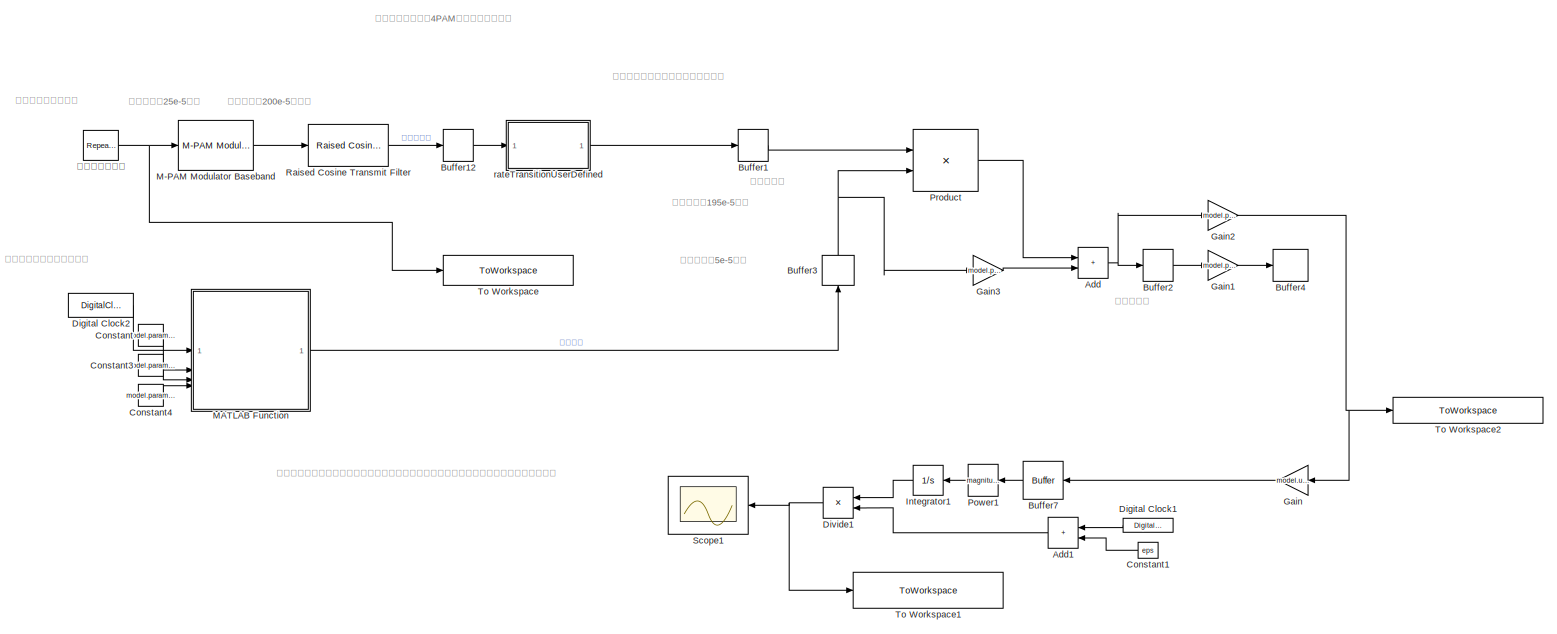
[diagram: root canvas - part 1/1, most of the canvas]
MODEL slx_f342829eb82f
KIND model
CONFIG AbsTol = auto
CONFIG EnableMultiTasking = off
CONFIG FixedStep = auto
CONFIG InitFcn = Parameter_Initialize_3
CONFIG MaxStep = auto
CONFIG MinStep = auto
CONFIG RelTol = 1e-3
CONFIG SampleTimeConstraint = Unconstrained
CONFIG SolverName = VariableStepAuto
CONFIG StartTime = 0.0
CONFIG StopTime = 0.01
BLOCK [Sum] Add
  IconShape = rectangular
BLOCK [Sum] Add1
  IconShape = rectangular
  NameLocation = top
BLOCK [Buffer] Buffer1
  N = model.parameter.Buffer1.Output_buffer_size
  OutputFrames = off
BLOCK [Buffer] Buffer12
  N = model.parameter.Buffer12.Output_buffer_size
  OutputFrames = off
BLOCK [Buffer] Buffer2
  Commented = on
  N = model.parameter.Buffer2.Output_buffer_size
  OutputFrames = off
BLOCK [Buffer] Buffer3
  N = model.parameter.Buffer3.Output_buffer_size
  NameLocation = right
  OutputFrames = off
BLOCK [Buffer] Buffer4
  Commented = on
  N = model.parameter.Buffer4.Output_buffer_size
  OutputFrames = off
BLOCK [Buffer] Buffer7
  N = 1
  NameLocation = top
  OutputFrames = off
BLOCK [Constant] Constant
  Value = model.parameter.func1.f_chirp_min
BLOCK [Constant] Constant1
  NameLocation = top
  SampleTime = model.parameter.channel_estimate_fs
  Value = eps
BLOCK [Constant] Constant3
  Value = model.parameter.func1.f_chirp_max
BLOCK [Constant] Constant4
  Value = model.parameter.func1.T_chirp
BLOCK [DigitalClock] Digital Clock1
  NameLocation = top
  SampleTime = model.parameter.channel_estimate_fs
BLOCK [DigitalClock] Digital Clock2
  SampleTime = model.parameter.Digital_Clock2.CarrierTs
BLOCK [Product] Divide1
  Inputs = */
  NameLocation = top
BLOCK [Gain] Gain
  Gain = model.user_defined.TR.Sig_power_controller_coeffience
  NameLocation = top
BLOCK [Gain] Gain1
  Commented = on
  Gain = model.parameter.gain1.value
BLOCK [Gain] Gain2
  Gain = model.parameter.gain1.value
BLOCK [Gain] Gain3
  Gain = model.parameter.gain3.value
BLOCK [Integrator] Integrator1
  NameLocation = top
BLOCK [Reference] M-PAM Modulator Baseband  REF=commdigbbndam3/M-PAM
Modulator
Baseband
  SourceBlock = commdigbbndam3/M-PAM\nModulator\nBaseband
  SourceType = M-PAM Modulator Baseband
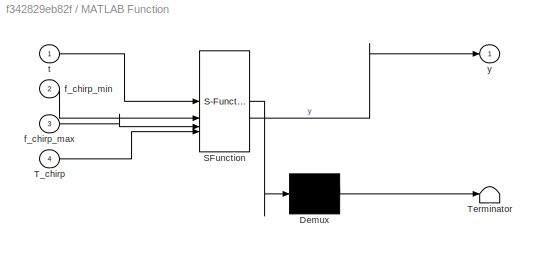
BLOCK [SubSystem] MATLAB Function
  ErrorFcn = Stateflow.Translate.translate
  InitFcn = f_chirp_min=4.8e6;\nf_chirp_max=5.2e6;\nT_chirp=4e-4;
  LibrarySourceBlock = simulink/User-Defined\nFunctions/MATLAB Function
  PermitHierarchicalResolution = ExplicitOnly
  SFBlockType = MATLAB Function
  TreatAsAtomicUnit = on
BLOCK [Demux] MATLAB Function/ Demux 
  Outputs = 1
BLOCK [S-Function] MATLAB Function/ SFunction 
  EnableBusSupport = on
  FunctionName = sf_sfun
  PortCounts = [4 2]
  SFcnIsStateOwnerBlock = off
  SFunctionDeploymentMode = off
  Tag = Stateflow S-Function 1
BLOCK [Terminator] MATLAB Function/ Terminator 
BLOCK [Inport] MATLAB Function/T_chirp
  Port = 4
BLOCK [Inport] MATLAB Function/f_chirp_max
  Port = 3
BLOCK [Inport] MATLAB Function/f_chirp_min
  Port = 2
BLOCK [Inport] MATLAB Function/t
BLOCK [Outport] MATLAB Function/y
BLOCK [Math] Power1
  NameLocation = top
  Operator = magnitude^2
BLOCK [Product] Product
BLOCK [Reference] Raised Cosine Transmit Filter  REF=commfilt2/Raised Cosine
Transmit Filter
  SourceBlock = commfilt2/Raised Cosine\nTransmit Filter
  SourceType = Raised Cosine Transmit Filter
BLOCK [Scope] Scope1
  Floating = off
  NameLocation = top
  NumInputPorts = 1
  ScopeSpecificationString = Simulink.scopes.TimeScopeBlockCfg('CurrentConfiguration', extmgr.ConfigurationSet(extmgr.Configuration('Core','General UI',true),extmgr.Configuration('Core','Source UI',true),extmgr.Configuration('Sources','WiredSimulink',true,'DataLoggingVariableName','ScopeData1'),extmgr.Configuration('Visuals','Time Domain',true,'SerializedDisplays',{struct('MinYLimReal','-0.01419','MaxYLimReal','0.12775','YLab...<+1388ch>
BLOCK [ToWorkspace] To Workspace
  FixptAsFi = on
  MaxDataPoints = inf
  SampleTime = -1
  SaveFormat = Timeseries
  VariableName = sending_coding
BLOCK [ToWorkspace] To Workspace1
  FixptAsFi = on
  MaxDataPoints = inf
  SampleTime = -1
  SaveFormat = Timeseries
  VariableName = power_estimation_result
BLOCK [ToWorkspace] To Workspace2
  FixptAsFi = on
  MaxDataPoints = inf
  SampleTime = -1
  SaveFormat = Timeseries
  VariableName = sending_modulation_wave
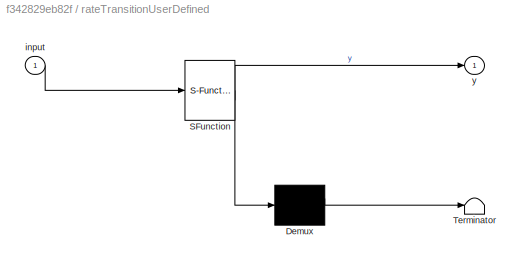
BLOCK [SubSystem] rateTransitionUserDefined
  ErrorFcn = Stateflow.Translate.translate
  LibrarySourceBlock = simulink/User-Defined\nFunctions/MATLAB Function
  PermitHierarchicalResolution = ExplicitOnly
  SFBlockType = MATLAB Function
  TreatAsAtomicUnit = on
BLOCK [Demux] rateTransitionUserDefined/ Demux 
  Outputs = 1
BLOCK [S-Function] rateTransitionUserDefined/ SFunction 
  EnableBusSupport = on
  FunctionName = sf_sfun
  PortCounts = [1 2]
  SFcnIsStateOwnerBlock = off
  SFunctionDeploymentMode = off
  Tag = Stateflow S-Function 5
BLOCK [Terminator] rateTransitionUserDefined/ Terminator 
BLOCK [Inport] rateTransitionUserDefined/input
BLOCK [Outport] rateTransitionUserDefined/y
BLOCK [Reference] 帧信号编码码元  REF=simulink/Sources/Repeating
Sequence
Stair
  SourceBlock = simulink/Sources/Repeating\nSequence\nStair
  SourceType = Repeating Sequence Stair
ANNOTATION (root): 帧信号仿真（基于4PAM的线性调频链路）
ANNOTATION (root): 新发现：对于堆栈由大变小，当大堆栈的大小不是小堆栈大小的整数倍时，同样会产生时延
ANNOTATION (root): 射频调制模拟以及部分本地载波相加
ANNOTATION (root): 帧信号基带调制模块
ANNOTATION (root): 帧信号对应的本地载波生成
ANNOTATION (root): 此处产生了195e-5延时
ANNOTATION (root): 此处产生了200e-5的延时
ANNOTATION (root): 此处产生了25e-5延时
ANNOTATION (root): 此处产生了5e-5延时
ANNOTATION (root): 此处无延时
LINE Add1:1 -> Divide1:2
NET Add:1 -> Buffer2:1, Gain2:1
LINE Buffer12:1 -> rateTransitionUserDefined:1
LINE Buffer1:1 -> Product:1
LINE Buffer2:1 -> Gain1:1
NET Buffer3:1 -> Gain3:1, Product:2
LINE Buffer7:1 -> Power1:1
LINE Constant1:1 -> Add1:2
LINE Constant3:1 -> MATLAB Function:3
LINE Constant4:1 -> MATLAB Function:4
LINE Constant:1 -> MATLAB Function:2
LINE Digital Clock1:1 -> Add1:1
LINE Digital Clock2:1 -> MATLAB Function:1
NET Divide1:1 -> Scope1:1, To Workspace1:1
LINE Gain1:1 -> Buffer4:1
NET Gain2:1 -> Gain:1, To Workspace2:1
LINE Gain3:1 -> Add:2
LINE Gain:1 -> Buffer7:1
LINE Integrator1:1 -> Divide1:1
LINE M-PAM Modulator Baseband:1 -> Raised Cosine Transmit Filter:1
LINE MATLAB Function:1 -> Buffer3:1
LINE Power1:1 -> Integrator1:1
LINE Product:1 -> Add:1
LINE Raised Cosine Transmit Filter:1 -> Buffer12:1
LINE rateTransitionUserDefined:1 -> Buffer1:1
NET 帧信号编码码元:1 -> M-PAM Modulator Baseband:1, To Workspace:1
note: NET lines group one-source signal fan-out (src -> all destinations, sorted); 1:1 wires keep LINE
CHART MATLAB Function states=1 transitions=1
  STATE_LABEL 'eML_blk_kernel()'
  STATE_LABEL 'SCRIPT:\n% function y = carrierGenerator(t)\n%     fc = 5e6;\n%     y = exp(1i*2*pi*fc*t);\n\nfunction y = carrierGenerator(t, f_chirp_min, f_chirp_max, T_chirp)\n    k_chirp = (f_chirp_max-f_chirp_min)/T_chirp;\n    t = mod(t,T_chirp);\n    y = exp(1i*2*pi*(f_chirp_min*t+0.5*k_chirp*t^2));\n\nend\n'
CHART rateTransitionUserDefined states=1 transitions=1
  STATE_LABEL 'eML_blk_kernel()'
  STATE_LABEL 'SCRIPT:\n% function y = carrierGenerator(t)\n%     fc = 5e6;\n%     y = exp(1i*2*pi*fc*t);\n\nfunction y = rateTransition(input)\n    p = 1;\n    q = 1;\n    y = resample(input,p,q);\n%     y(1:100) = repmat(y(100),1,100);\n%     y(end-99:end) = repmat(y(end-99),1,100);\nend\n'
CHART  states=0 transitions=0
CHART  states=0 transitions=0
